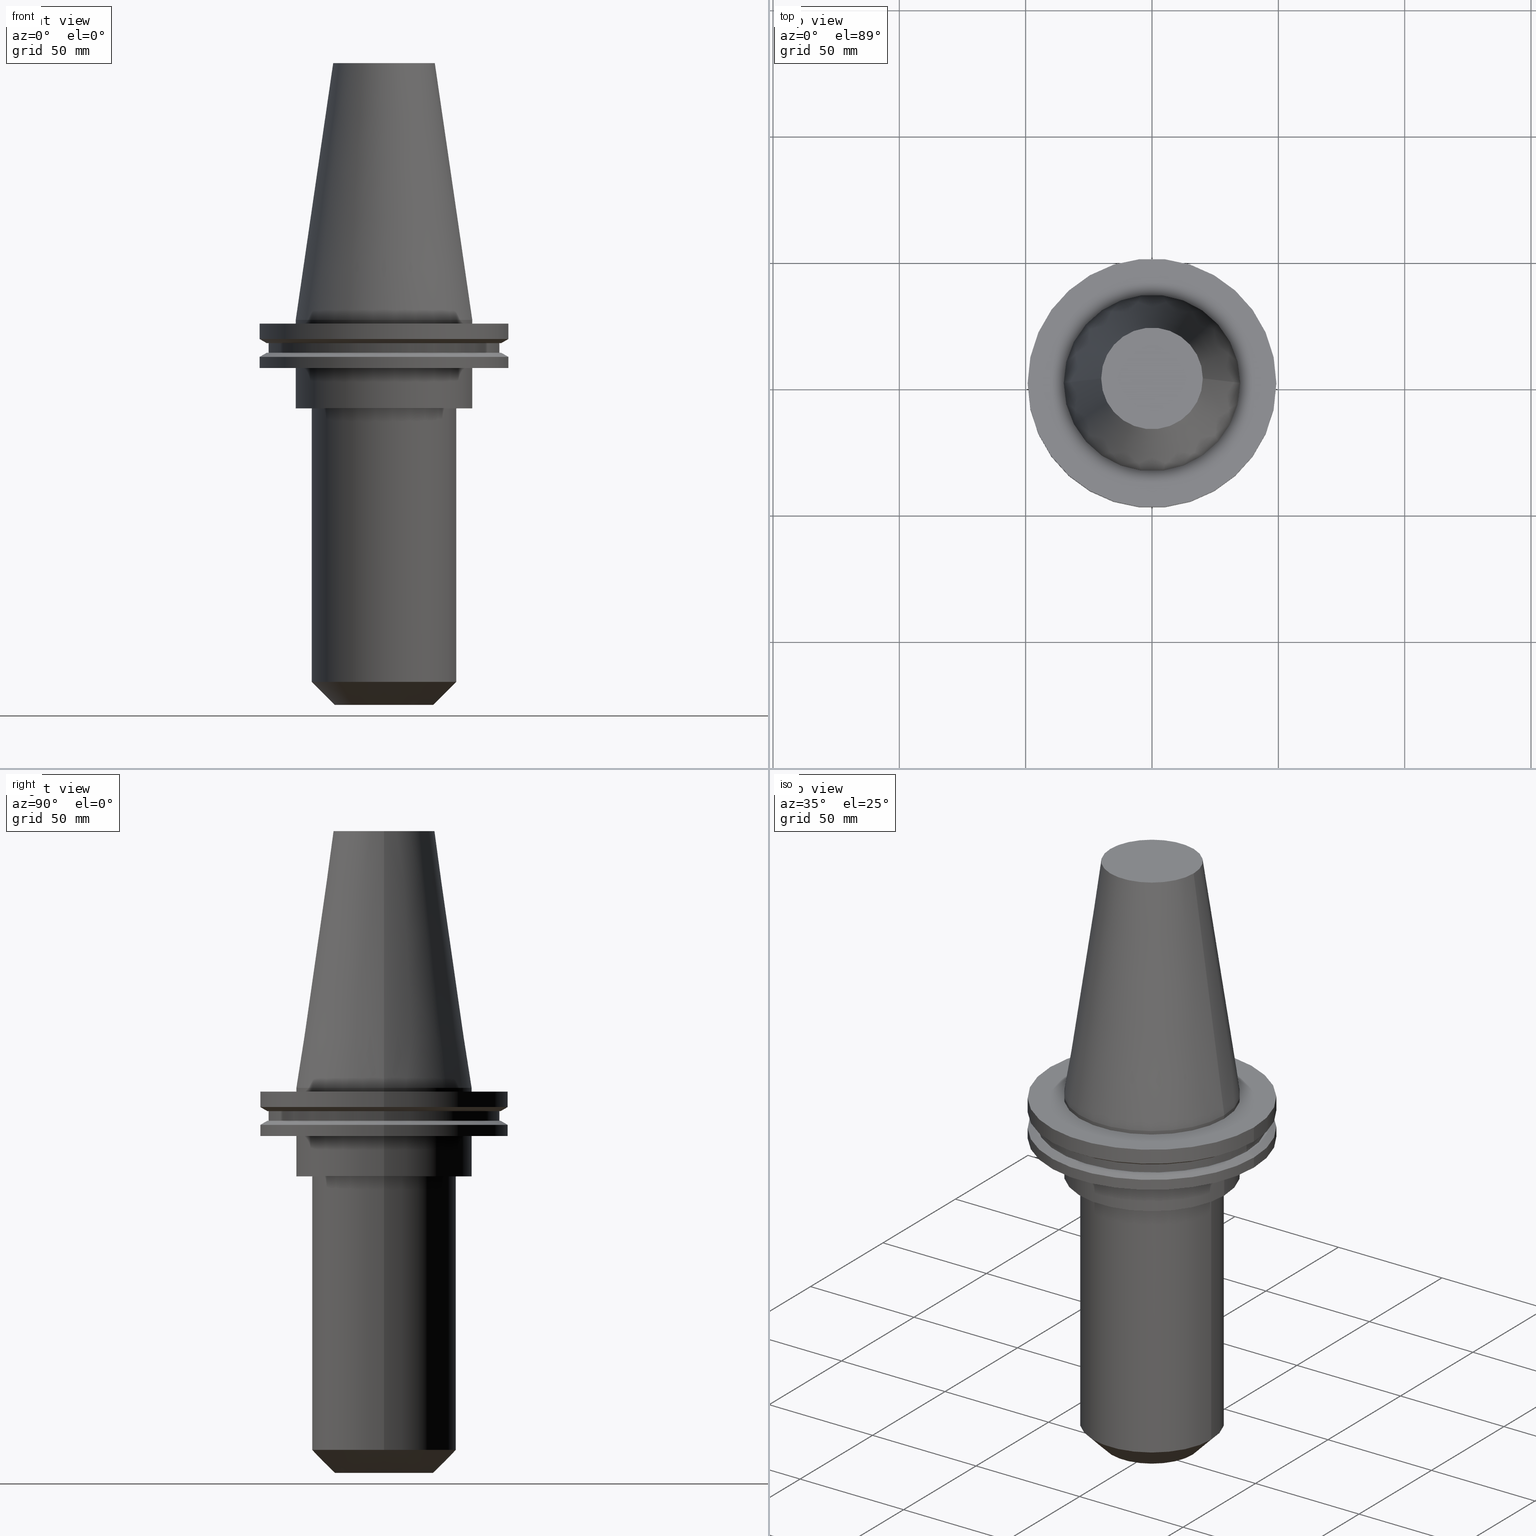
[diagram: canonical four-view strip — front | top / right | iso, engineering-drawing reading convention]
A machine part, canonical four-view strip (front | top / right | iso — engineering-drawing reading convention). The complete STEP part file that produces these views, byte-faithful:
ISO-10303-21;
HEADER;
FILE_DESCRIPTION (( 'STEP AP203' ),
    '1' );
FILE_NAME ('BCV50-EM1_000-6.stp',
    '2022-03-03T16:45:47',
    ( '' ),
    ( '' ),
    'SwSTEP 2.0',
    'SolidWorks 2021',
    '' );
FILE_SCHEMA (( 'CONFIG_CONTROL_DESIGN' ));
ENDSEC;

DATA;
#1 = EDGE_CURVE ( 'NONE', #834, #546, #596, .T. ) ;
#2 = CARTESIAN_POINT ( 'NONE',  ( 19.49999999999998579, 0.000000000000000000, -152.4000000000000057 ) ) ;
#3 = LINE ( 'NONE', #720, #48 ) ;
#4 = CARTESIAN_POINT ( 'NONE',  ( 0.000000000000000000, 0.000000000000000000, -13.05499999999999794 ) ) ;
#5 = AXIS2_PLACEMENT_3D ( 'NONE', #263, #725, #133 ) ;
#6 = LINE ( 'NONE', #421, #545 ) ;
#7 = ORIENTED_EDGE ( 'NONE', *, *, #789, .T. ) ;
#8 = CARTESIAN_POINT ( 'NONE',  ( 0.000000000000000000, 0.000000000000000000, -13.05499999999999794 ) ) ;
#9 = CARTESIAN_POINT ( 'NONE',  ( -49.21499999999999631, 6.027099222003697826E-15, -1.499999999999987566 ) ) ;
#10 = ORIENTED_EDGE ( 'NONE', *, *, #108, .F. ) ;
#11 = CYLINDRICAL_SURFACE ( 'NONE', #104, 34.92499999999999716 ) ;
#12 = AXIS2_PLACEMENT_3D ( 'NONE', #175, #433, #569 ) ;
#13 = CARTESIAN_POINT ( 'NONE',  ( 0.000000000000000000, 0.000000000000000000, -9.204999999999991189 ) ) ;
#14 = ORIENTED_EDGE ( 'NONE', *, *, #662, .F. ) ;
#15 = CARTESIAN_POINT ( 'NONE',  ( 0.000000000000000000, 49.21499999999999631, -1.499999999999992895 ) ) ;
#16 = DIRECTION ( 'NONE',  ( 1.000000000000000000, 0.000000000000000000, 0.000000000000000000 ) ) ;
#17 = EDGE_CURVE ( 'NONE', #290, #130, #443, .T. ) ;
#18 = AXIS2_PLACEMENT_3D ( 'NONE', #413, #491, #167 ) ;
#19 =( NAMED_UNIT ( * ) SI_UNIT ( $, .STERADIAN. ) SOLID_ANGLE_UNIT ( ) );
#20 = ORIENTED_EDGE ( 'NONE', *, *, #79, .F. ) ;
#21 = DIRECTION ( 'NONE',  ( 1.000000000000000000, 0.000000000000000000, 0.000000000000000000 ) ) ;
#22 = VECTOR ( 'NONE', #404, 999.9999999999998863 ) ;
#23 = ORIENTED_EDGE ( 'NONE', *, *, #201, .T. ) ;
#24 = EDGE_CURVE ( 'NONE', #769, #705, #691, .T. ) ;
#25 = FACE_BOUND ( 'NONE', #214, .T. ) ;
#26 = CYLINDRICAL_SURFACE ( 'NONE', #688, 28.59999999999999432 ) ;
#27 = AXIS2_PLACEMENT_3D ( 'NONE', #224, #682, #164 ) ;
#28 = ORIENTED_EDGE ( 'NONE', *, *, #268, .T. ) ;
#29 = EDGE_CURVE ( 'NONE', #834, #587, #670, .T. ) ;
#30 = DIRECTION ( 'NONE',  ( 1.000000000000000000, 0.000000000000000000, 0.000000000000000000 ) ) ;
#31 = ORIENTED_EDGE ( 'NONE', *, *, #555, .T. ) ;
#32 = APPROVAL_ROLE ( '' ) ;
#33 = ORIENTED_EDGE ( 'NONE', *, *, #108, .T. ) ;
#34 = FACE_OUTER_BOUND ( 'NONE', #239, .T. ) ;
#35 = CIRCLE ( 'NONE', #508, 49.21500000000000341 ) ;
#36 = APPROVAL_DATE_TIME ( #641, #675 ) ;
#37 = VERTEX_POINT ( 'NONE', #195 ) ;
#38 = FACE_OUTER_BOUND ( 'NONE', #134, .T. ) ;
#39 = EDGE_CURVE ( 'NONE', #771, #633, #65, .T. ) ;
#40 = APPROVAL_STATUS ( 'not_yet_approved' ) ;
#41 = ORIENTED_EDGE ( 'NONE', *, *, #394, .F. ) ;
#42 = AXIS2_PLACEMENT_3D ( 'NONE', #69, #790, #206 ) ;
#43 = LINE ( 'NONE', #251, #570 ) ;
#44 = VERTEX_POINT ( 'NONE', #594 ) ;
#45 = ADVANCED_FACE ( 'NONE', ( #452, #849 ), #387, .F. ) ;
#46 = VERTEX_POINT ( 'NONE', #124 ) ;
#47 = FACE_OUTER_BOUND ( 'NONE', #192, .T. ) ;
#48 = VECTOR ( 'NONE', #781, 1000.000000000000000 ) ;
#49 = VERTEX_POINT ( 'NONE', #585 ) ;
#50 = AXIS2_PLACEMENT_3D ( 'NONE', #194, #604, #319 ) ;
#51 = ORIENTED_EDGE ( 'NONE', *, *, #640, .T. ) ;
#52 = CARTESIAN_POINT ( 'NONE',  ( 0.000000000000000000, 0.000000000000000000, -152.4000000000000057 ) ) ;
#53 = FACE_BOUND ( 'NONE', #519, .T. ) ;
#54 = DIRECTION ( 'NONE',  ( 1.000000000000000000, 0.000000000000000000, 0.000000000000000000 ) ) ;
#55 = ORIENTED_EDGE ( 'NONE', *, *, #495, .T. ) ;
#56 = DIRECTION ( 'NONE',  ( -0.000000000000000000, -0.000000000000000000, 1.000000000000000000 ) ) ;
#57 = EDGE_CURVE ( 'NONE', #754, #587, #468, .T. ) ;
#58 = CARTESIAN_POINT ( 'NONE',  ( 34.92499999999999005, 0.000000000000000000, 101.5999999999999943 ) ) ;
#59 = DIRECTION ( 'NONE',  ( -0.000000000000000000, -0.000000000000000000, 1.000000000000000000 ) ) ;
#60 = CARTESIAN_POINT ( 'NONE',  ( -49.21499999999999631, 6.027099222003697826E-15, 101.5999999999999943 ) ) ;
#61 = DIRECTION ( 'NONE',  ( 1.000000000000000000, 0.000000000000000000, 0.000000000000000000 ) ) ;
#62 = CIRCLE ( 'NONE', #18, 34.92499999999999716 ) ;
#63 = ORIENTED_EDGE ( 'NONE', *, *, #773, .F. ) ;
#64 = CARTESIAN_POINT ( 'NONE',  ( 0.000000000000000000, 0.000000000000000000, 0.000000000000000000 ) ) ;
#65 = CIRCLE ( 'NONE', #734, 45.64500000000000313 ) ;
#66 = DIRECTION ( 'NONE',  ( -0.000000000000000000, -0.000000000000000000, 1.000000000000000000 ) ) ;
#67 = DIRECTION ( 'NONE',  ( 1.000000000000000000, 0.000000000000000000, 0.000000000000000000 ) ) ;
#68 = EDGE_CURVE ( 'NONE', #44, #785, #359, .T. ) ;
#69 = CARTESIAN_POINT ( 'NONE',  ( 0.000000000000000000, 0.000000000000000000, -35.04999999999999716 ) ) ;
#70 = CARTESIAN_POINT ( 'NONE',  ( 0.000000000000000000, 0.000000000000000000, 0.000000000000000000 ) ) ;
#71 = CONICAL_SURFACE ( 'NONE', #87, 19.49999999999998579, 0.7853981633974495002 ) ;
#72 = CARTESIAN_POINT ( 'NONE',  ( 0.000000000000000000, 0.000000000000000000, -13.05499999999999794 ) ) ;
#73 = DIRECTION ( 'NONE',  ( 1.000000000000000000, 0.000000000000000000, 0.000000000000000000 ) ) ;
#74 = DIRECTION ( 'NONE',  ( -0.000000000000000000, -0.000000000000000000, 1.000000000000000000 ) ) ;
#75 = CARTESIAN_POINT ( 'NONE',  ( 0.000000000000000000, 0.000000000000000000, 0.000000000000000000 ) ) ;
#76 = VECTOR ( 'NONE', #166, 1000.000000000000000 ) ;
#77 = AXIS2_PLACEMENT_3D ( 'NONE', #240, #710, #506 ) ;
#78 = ORIENTED_EDGE ( 'NONE', *, *, #667, .T. ) ;
#79 = EDGE_CURVE ( 'NONE', #130, #290, #354, .T. ) ;
#80 = FACE_OUTER_BOUND ( 'NONE', #475, .T. ) ;
#81 = DIRECTION ( 'NONE',  ( 0.7071067811865483499, 0.000000000000000000, 0.7071067811865466846 ) ) ;
#82 = CARTESIAN_POINT ( 'NONE',  ( 0.000000000000000000, 0.000000000000000000, -19.04999999999999716 ) ) ;
#83 = VERTEX_POINT ( 'NONE', #139 ) ;
#84 = DIRECTION ( 'NONE',  ( -0.000000000000000000, -0.000000000000000000, 1.000000000000000000 ) ) ;
#85 = EDGE_CURVE ( 'NONE', #633, #771, #397, .T. ) ;
#86 = CARTESIAN_POINT ( 'NONE',  ( 0.000000000000000000, 0.000000000000000000, -35.04999999999999716 ) ) ;
#87 = AXIS2_PLACEMENT_3D ( 'NONE', #189, #588, #198 ) ;
#88 = DIRECTION ( 'NONE',  ( -0.000000000000000000, -0.000000000000000000, 1.000000000000000000 ) ) ;
#89 = ORIENTED_EDGE ( 'NONE', *, *, #368, .F. ) ;
#90 = CARTESIAN_POINT ( 'NONE',  ( 0.000000000000000000, 0.000000000000000000, 0.000000000000000000 ) ) ;
#91 = EDGE_CURVE ( 'NONE', #49, #636, #287, .T. ) ;
#92 = AXIS2_PLACEMENT_3D ( 'NONE', #333, #600, #482 ) ;
#93 = CARTESIAN_POINT ( 'NONE',  ( 0.000000000000000000, 0.000000000000000000, -152.4000000000000057 ) ) ;
#94 = CARTESIAN_POINT ( 'NONE',  ( -46.43919780457007818, 5.687161494633754392E-15, -9.204999999999991189 ) ) ;
#95 = EDGE_CURVE ( 'NONE', #445, #312, #62, .T. ) ;
#96 = PERSON_AND_ORGANIZATION ( #294, #364 ) ;
#97 = EDGE_LOOP ( 'NONE', ( #619, #165, #317, #684 ) ) ;
#98 = DIRECTION ( 'NONE',  ( -0.000000000000000000, -0.000000000000000000, 1.000000000000000000 ) ) ;
#99 = ORIENTED_EDGE ( 'NONE', *, *, #846, .F. ) ;
#100 = LOCAL_TIME ( 10, 45, 47.00000000000000000, #301 ) ;
#101 = PERSON_AND_ORGANIZATION_ROLE ( 'design_supplier' ) ;
#102 = ORIENTED_EDGE ( 'NONE', *, *, #622, .T. ) ;
#103 = LINE ( 'NONE', #370, #816 ) ;
#104 = AXIS2_PLACEMENT_3D ( 'NONE', #681, #84, #282 ) ;
#105 = DATE_AND_TIME ( #563, #283 ) ;
#106 = ORIENTED_EDGE ( 'NONE', *, *, #17, .F. ) ;
#107 = CARTESIAN_POINT ( 'NONE',  ( 0.000000000000000000, 0.000000000000000000, 0.000000000000000000 ) ) ;
#108 = EDGE_CURVE ( 'NONE', #625, #818, #507, .T. ) ;
#109 = CIRCLE ( 'NONE', #564, 34.92499999999999716 ) ;
#110 = COORDINATED_UNIVERSAL_TIME_OFFSET ( 6, 0, .BEHIND. ) ;
#111 = ORIENTED_EDGE ( 'NONE', *, *, #29, .F. ) ;
#112 = DIRECTION ( 'NONE',  ( 0.000000000000000000, -0.000000000000000000, 1.000000000000000000 ) ) ;
#113 = EDGE_CURVE ( 'NONE', #754, #250, #137, .T. ) ;
#114 = ORIENTED_EDGE ( 'NONE', *, *, #846, .T. ) ;
#115 = EDGE_LOOP ( 'NONE', ( #830, #524, #574, #14 ) ) ;
#116 = AXIS2_PLACEMENT_3D ( 'NONE', #128, #335, #836 ) ;
#117 = CARTESIAN_POINT ( 'NONE',  ( 0.000000000000000000, 0.000000000000000000, -152.4000000000000057 ) ) ;
#118 = ORIENTED_EDGE ( 'NONE', *, *, #424, .F. ) ;
#119 = ADVANCED_FACE ( 'NONE', ( #627 ), #26, .T. ) ;
#120 = ORIENTED_EDGE ( 'NONE', *, *, #355, .T. ) ;
#121 = DIRECTION ( 'NONE',  ( -0.000000000000000000, -0.000000000000000000, 1.000000000000000000 ) ) ;
#122 = CARTESIAN_POINT ( 'NONE',  ( -28.59999999999999432, 3.502489845561429418E-15, -35.04999999999999716 ) ) ;
#123 = AXIS2_PLACEMENT_3D ( 'NONE', #267, #530, #791 ) ;
#124 = CARTESIAN_POINT ( 'NONE',  ( -12.69999999999999574, 1.555301434917138038E-15, -35.04999999999999716 ) ) ;
#125 = ORIENTED_EDGE ( 'NONE', *, *, #85, .T. ) ;
#126 = EDGE_CURVE ( 'NONE', #818, #805, #544, .T. ) ;
#127 = VECTOR ( 'NONE', #326, 1000.000000000000000 ) ;
#128 = CARTESIAN_POINT ( 'NONE',  ( 0.000000000000000000, 0.000000000000000000, -19.04999999999999716 ) ) ;
#129 = CARTESIAN_POINT ( 'NONE',  ( 0.000000000000000000, 0.000000000000000000, -14.65761014474876944 ) ) ;
#130 = VERTEX_POINT ( 'NONE', #156 ) ;
#131 = FACE_OUTER_BOUND ( 'NONE', #713, .T. ) ;
#132 = VECTOR ( 'NONE', #339, 1000.000000000000000 ) ;
#133 = DIRECTION ( 'NONE',  ( 1.000000000000000000, 0.000000000000000000, 0.000000000000000000 ) ) ;
#134 = EDGE_LOOP ( 'NONE', ( #187, #726, #348, #788 ) ) ;
#135 = DIRECTION ( 'NONE',  ( -0.000000000000000000, -0.000000000000000000, 1.000000000000000000 ) ) ;
#136 = DIRECTION ( 'NONE',  ( -0.000000000000000000, -0.000000000000000000, 1.000000000000000000 ) ) ;
#137 = CIRCLE ( 'NONE', #249, 34.92499999999999005 ) ;
#138 = EDGE_CURVE ( 'NONE', #46, #677, #423, .T. ) ;
#139 = CARTESIAN_POINT ( 'NONE',  ( -28.60000000000000853, 3.502489845561430996E-15, -143.3000000000000114 ) ) ;
#140 = DIRECTION ( 'NONE',  ( -0.000000000000000000, -0.000000000000000000, 1.000000000000000000 ) ) ;
#141 = LINE ( 'NONE', #599, #173 ) ;
#142 = ORIENTED_EDGE ( 'NONE', *, *, #789, .F. ) ;
#143 = DIRECTION ( 'NONE',  ( 1.000000000000000000, 0.000000000000000000, 0.000000000000000000 ) ) ;
#144 = EDGE_LOOP ( 'NONE', ( #125, #845, #20, #236 ) ) ;
#145 = DIRECTION ( 'NONE',  ( 1.000000000000000000, 0.000000000000000000, 0.000000000000000000 ) ) ;
#146 = DIRECTION ( 'NONE',  ( -0.000000000000000000, -0.000000000000000000, 1.000000000000000000 ) ) ;
#147 = MECHANICAL_CONTEXT ( 'NONE', #706, 'mechanical' ) ;
#148 = VECTOR ( 'NONE', #689, 999.9999999999998863 ) ;
#149 = EDGE_LOOP ( 'NONE', ( #565, #645, #480, #709 ) ) ;
#150 = DIRECTION ( 'NONE',  ( -1.000000000000000000, 0.000000000000000000, -0.000000000000000000 ) ) ;
#151 = ADVANCED_FACE ( 'NONE', ( #420, #298 ), #759, .F. ) ;
#152 = CARTESIAN_POINT ( 'NONE',  ( 0.000000000000000000, 0.000000000000000000, 101.5999999999999943 ) ) ;
#153 = VERTEX_POINT ( 'NONE', #122 ) ;
#154 = CARTESIAN_POINT ( 'NONE',  ( 49.21499999999998920, 6.027099222003697037E-15, -14.65761014474876944 ) ) ;
#155 = VECTOR ( 'NONE', #461, 1000.000000000000000 ) ;
#156 = CARTESIAN_POINT ( 'NONE',  ( 45.64500000000000313, 0.000000000000000000, -9.204999999999991189 ) ) ;
#157 = APPLICATION_PROTOCOL_DEFINITION ( 'international standard', 'config_control_design', 1994, #162 ) ;
#158 = ORIENTED_EDGE ( 'NONE', *, *, #355, .F. ) ;
#159 = DIRECTION ( 'NONE',  ( -0.000000000000000000, -0.000000000000000000, 1.000000000000000000 ) ) ;
#160 = EDGE_CURVE ( 'NONE', #636, #49, #109, .T. ) ;
#161 = DIRECTION ( 'NONE',  ( -0.000000000000000000, -0.000000000000000000, 1.000000000000000000 ) ) ;
#162 = APPLICATION_CONTEXT ( 'configuration controlled 3d designs of mechanical parts and assemblies' ) ;
#163 = CONICAL_SURFACE ( 'NONE', #644, 46.43919780457007818, 1.047197551196575205 ) ;
#164 = DIRECTION ( 'NONE',  ( 1.000000000000000000, 0.000000000000000000, 0.000000000000000000 ) ) ;
#165 = ORIENTED_EDGE ( 'NONE', *, *, #773, .T. ) ;
#166 = DIRECTION ( 'NONE',  ( -0.8660254037844273833, 1.060575238724893110E-16, 0.5000000000000195399 ) ) ;
#167 = DIRECTION ( 'NONE',  ( 1.000000000000000000, 0.000000000000000000, 0.000000000000000000 ) ) ;
#168 = ADVANCED_FACE ( 'NONE', ( #456 ), #332, .F. ) ;
#169 = DATE_TIME_ROLE ( 'creation_date' ) ;
#170 = EDGE_LOOP ( 'NONE', ( #655, #757 ) ) ;
#171 = VECTOR ( 'NONE', #199, 1000.000000000000114 ) ;
#172 = DIRECTION ( 'NONE',  ( 1.000000000000000000, 0.000000000000000000, 0.000000000000000000 ) ) ;
#173 = VECTOR ( 'NONE', #669, 1000.000000000000000 ) ;
#174 = VERTEX_POINT ( 'NONE', #274 ) ;
#175 = CARTESIAN_POINT ( 'NONE',  ( 0.000000000000000000, 49.21499999999998920, -19.04999999999999716 ) ) ;
#176 = AXIS2_PLACEMENT_3D ( 'NONE', #273, #347, #687 ) ;
#177 = ORIENTED_EDGE ( 'NONE', *, *, #310, .F. ) ;
#178 = ADVANCED_FACE ( 'NONE', ( #538 ), #802, .T. ) ;
#179 = LINE ( 'NONE', #698, #853 ) ;
#180 = EDGE_LOOP ( 'NONE', ( #373, #120, #376, #504 ) ) ;
#181 = ADVANCED_FACE ( 'NONE', ( #801 ), #470, .T. ) ;
#182 = DIRECTION ( 'NONE',  ( 0.8660254037844273833, 0.000000000000000000, 0.5000000000000195399 ) ) ;
#183 = PERSON_AND_ORGANIZATION ( #294, #364 ) ;
#184 = VERTEX_POINT ( 'NONE', #733 ) ;
#185 = DIRECTION ( 'NONE',  ( -0.000000000000000000, -0.000000000000000000, 1.000000000000000000 ) ) ;
#186 = ADVANCED_FACE ( 'NONE', ( #653, #53 ), #204, .F. ) ;
#187 = ORIENTED_EDGE ( 'NONE', *, *, #216, .T. ) ;
#188 = ORIENTED_EDGE ( 'NONE', *, *, #91, .F. ) ;
#189 = CARTESIAN_POINT ( 'NONE',  ( 0.000000000000000000, 0.000000000000000000, -152.4000000000000057 ) ) ;
#190 = DIRECTION ( 'NONE',  ( 1.000000000000000000, 0.000000000000000000, 0.000000000000000000 ) ) ;
#191 = EDGE_CURVE ( 'NONE', #805, #83, #427, .T. ) ;
#192 = EDGE_LOOP ( 'NONE', ( #63, #663, #218, #314 ) ) ;
#193 = LINE ( 'NONE', #664, #448 ) ;
#194 = CARTESIAN_POINT ( 'NONE',  ( 0.000000000000000000, 0.000000000000000000, 101.5999999999999943 ) ) ;
#195 = CARTESIAN_POINT ( 'NONE',  ( -49.21499999999998920, 6.027099222003697037E-15, -14.65761014474876944 ) ) ;
#196 = CONICAL_SURFACE ( 'NONE', #344, 19.49999999999998579, 0.7853981633974495002 ) ;
#197 = ORIENTED_EDGE ( 'NONE', *, *, #68, .F. ) ;
#198 = DIRECTION ( 'NONE',  ( 1.000000000000000000, 0.000000000000000000, 0.000000000000000000 ) ) ;
#199 = DIRECTION ( 'NONE',  ( -0.8660254037844169472, 0.000000000000000000, -0.5000000000000375255 ) ) ;
#200 = EDGE_LOOP ( 'NONE', ( #820, #778 ) ) ;
#201 = EDGE_CURVE ( 'NONE', #250, #241, #787, .T. ) ;
#202 = FACE_OUTER_BOUND ( 'NONE', #337, .T. ) ;
#203 = AXIS2_PLACEMENT_3D ( 'NONE', #82, #415, #541 ) ;
#204 = PLANE ( 'NONE',  #235 ) ;
#205 = ORIENTED_EDGE ( 'NONE', *, *, #216, .F. ) ;
#206 = DIRECTION ( 'NONE',  ( 1.000000000000000000, 0.000000000000000000, 0.000000000000000000 ) ) ;
#207 = EDGE_CURVE ( 'NONE', #649, #174, #141, .T. ) ;
#208 = DIRECTION ( 'NONE',  ( -0.000000000000000000, -0.000000000000000000, 1.000000000000000000 ) ) ;
#209 = VECTOR ( 'NONE', #81, 1000.000000000000000 ) ;
#210 = DIRECTION ( 'NONE',  ( 1.000000000000000000, 0.000000000000000000, 0.000000000000000000 ) ) ;
#211 = DIRECTION ( 'NONE',  ( -1.000000000000000000, 0.000000000000000000, -0.000000000000000000 ) ) ;
#212 = EDGE_CURVE ( 'NONE', #546, #834, #652, .T. ) ;
#213 = LINE ( 'NONE', #537, #132 ) ;
#214 = EDGE_LOOP ( 'NONE', ( #638, #396 ) ) ;
#215 = CARTESIAN_POINT ( 'NONE',  ( -34.92499999999999716, 4.277078946022130887E-15, -19.04999999999999716 ) ) ;
#216 = EDGE_CURVE ( 'NONE', #785, #44, #35, .T. ) ;
#217 = CARTESIAN_POINT ( 'NONE',  ( 0.000000000000000000, 0.000000000000000000, 0.000000000000000000 ) ) ;
#218 = ORIENTED_EDGE ( 'NONE', *, *, #572, .T. ) ;
#219 = LINE ( 'NONE', #94, #76 ) ;
#220 = CARTESIAN_POINT ( 'NONE',  ( 0.000000000000000000, 0.000000000000000000, -1.499999999999987566 ) ) ;
#221 = PERSON_AND_ORGANIZATION_ROLE ( 'design_owner' ) ;
#222 = EDGE_CURVE ( 'NONE', #705, #37, #403, .T. ) ;
#223 = DIRECTION ( 'NONE',  ( -0.000000000000000000, -0.000000000000000000, 1.000000000000000000 ) ) ;
#224 = CARTESIAN_POINT ( 'NONE',  ( 0.000000000000000000, 0.000000000000000000, 101.5999999999999943 ) ) ;
#225 = ORIENTED_EDGE ( 'NONE', *, *, #212, .T. ) ;
#226 = PRODUCT_RELATED_PRODUCT_CATEGORY ( 'detail', '', ( #741 ) ) ;
#227 = CYLINDRICAL_SURFACE ( 'NONE', #779, 45.64500000000000313 ) ;
#228 = AXIS2_PLACEMENT_3D ( 'NONE', #484, #742, #804 ) ;
#229 = ORIENTED_EDGE ( 'NONE', *, *, #24, .F. ) ;
#230 = DIRECTION ( 'NONE',  ( 1.000000000000000000, 0.000000000000000000, 0.000000000000000000 ) ) ;
#231 = PERSON_AND_ORGANIZATION ( #294, #364 ) ;
#232 = VERTEX_POINT ( 'NONE', #390 ) ;
#233 = CIRCLE ( 'NONE', #343, 49.21499999999999631 ) ;
#234 = FACE_OUTER_BOUND ( 'NONE', #371, .T. ) ;
#235 = AXIS2_PLACEMENT_3D ( 'NONE', #535, #657, #593 ) ;
#236 = ORIENTED_EDGE ( 'NONE', *, *, #622, .F. ) ;
#237 = EDGE_CURVE ( 'NONE', #49, #312, #3, .T. ) ;
#238 = APPROVAL_STATUS ( 'not_yet_approved' ) ;
#239 = EDGE_LOOP ( 'NONE', ( #416, #188 ) ) ;
#240 = CARTESIAN_POINT ( 'NONE',  ( 0.000000000000000000, 0.000000000000000000, -14.65761014474876944 ) ) ;
#241 = VERTEX_POINT ( 'NONE', #590 ) ;
#242 = ADVANCED_FACE ( 'NONE', ( #467 ), #844, .F. ) ;
#243 = CIRCLE ( 'NONE', #309, 49.21499999999998920 ) ;
#244 = PERSON_AND_ORGANIZATION_ROLE ( 'classification_officer' ) ;
#245 = CC_DESIGN_APPROVAL ( #419, ( #855 ) ) ;
#246 = EDGE_LOOP ( 'NONE', ( #89, #118, #814, #55 ) ) ;
#247 = CYLINDRICAL_SURFACE ( 'NONE', #637, 28.59999999999999432 ) ;
#248 = ORIENTED_EDGE ( 'NONE', *, *, #518, .T. ) ;
#249 = AXIS2_PLACEMENT_3D ( 'NONE', #220, #680, #812 ) ;
#250 = VERTEX_POINT ( 'NONE', #848 ) ;
#251 = CARTESIAN_POINT ( 'NONE',  ( -45.64500000000000313, 5.589900314708094957E-15, 101.5999999999999943 ) ) ;
#252 = ORIENTED_EDGE ( 'NONE', *, *, #268, .F. ) ;
#253 = DIRECTION ( 'NONE',  ( -0.000000000000000000, -0.000000000000000000, 1.000000000000000000 ) ) ;
#254 = EDGE_CURVE ( 'NONE', #677, #46, #496, .T. ) ;
#255 = ORIENTED_EDGE ( 'NONE', *, *, #288, .T. ) ;
#256 =( GEOMETRIC_REPRESENTATION_CONTEXT ( 3 ) GLOBAL_UNCERTAINTY_ASSIGNED_CONTEXT ( ( #429 ) ) GLOBAL_UNIT_ASSIGNED_CONTEXT ( ( #284, #800, #19 ) ) REPRESENTATION_CONTEXT ( 'NONE', 'WORKASPACE' ) );
#257 = CARTESIAN_POINT ( 'NONE',  ( 0.000000000000000000, 0.000000000000000000, -35.04999999999999716 ) ) ;
#258 = DIRECTION ( 'NONE',  ( 1.000000000000000000, 0.000000000000000000, 0.000000000000000000 ) ) ;
#259 = DIRECTION ( 'NONE',  ( 1.000000000000000000, 0.000000000000000000, 0.000000000000000000 ) ) ;
#260 = AXIS2_PLACEMENT_3D ( 'NONE', #8, #815, #811 ) ;
#261 = ORIENTED_EDGE ( 'NONE', *, *, #39, .F. ) ;
#262 = LINE ( 'NONE', #525, #807 ) ;
#263 = CARTESIAN_POINT ( 'NONE',  ( 0.000000000000000000, 34.92499999999999716, -35.04999999999999716 ) ) ;
#264 = ORIENTED_EDGE ( 'NONE', *, *, #394, .T. ) ;
#265 = EDGE_CURVE ( 'NONE', #184, #672, #608, .T. ) ;
#266 = DIRECTION ( 'NONE',  ( 1.000000000000000000, 0.000000000000000000, 0.000000000000000000 ) ) ;
#267 = CARTESIAN_POINT ( 'NONE',  ( 0.000000000000000000, 0.000000000000000000, -35.04999999999999716 ) ) ;
#268 = EDGE_CURVE ( 'NONE', #810, #722, #233, .T. ) ;
#269 = CARTESIAN_POINT ( 'NONE',  ( -19.49999999999998579, 2.945275551949383784E-15, -152.4000000000000057 ) ) ;
#270 = CIRCLE ( 'NONE', #176, 49.21499999999998920 ) ;
#271 = CARTESIAN_POINT ( 'NONE',  ( -49.21499999999998920, 0.000000000000000000, -14.65761014474876944 ) ) ;
#272 = ORIENTED_EDGE ( 'NONE', *, *, #1, .F. ) ;
#273 = CARTESIAN_POINT ( 'NONE',  ( 0.000000000000000000, 0.000000000000000000, -19.04999999999999716 ) ) ;
#274 = CARTESIAN_POINT ( 'NONE',  ( 49.21499999999998920, 0.000000000000000000, -14.65761014474876944 ) ) ;
#275 = DIRECTION ( 'NONE',  ( -0.000000000000000000, -0.000000000000000000, 1.000000000000000000 ) ) ;
#276 = CIRCLE ( 'NONE', #580, 34.92499999999999005 ) ;
#277 = DIRECTION ( 'NONE',  ( 1.000000000000000000, 0.000000000000000000, 0.000000000000000000 ) ) ;
#278 = AXIS2_PLACEMENT_3D ( 'NONE', #4, #59, #782 ) ;
#279 = DIRECTION ( 'NONE',  ( -0.000000000000000000, -0.000000000000000000, 1.000000000000000000 ) ) ;
#280 = ADVANCED_FACE ( 'NONE', ( #543 ), #303, .T. ) ;
#281 = EDGE_LOOP ( 'NONE', ( #352, #114, #493, #501 ) ) ;
#282 = DIRECTION ( 'NONE',  ( 1.000000000000000000, 0.000000000000000000, 0.000000000000000000 ) ) ;
#283 = LOCAL_TIME ( 10, 45, 47.00000000000000000, #695 ) ;
#284 =( LENGTH_UNIT ( ) NAMED_UNIT ( * ) SI_UNIT ( .MILLI., .METRE. ) );
#285 = EDGE_LOOP ( 'NONE', ( #177, #554, #300, #515 ) ) ;
#286 = LINE ( 'NONE', #481, #561 ) ;
#287 = CIRCLE ( 'NONE', #92, 34.92499999999999716 ) ;
#288 = EDGE_CURVE ( 'NONE', #184, #44, #219, .T. ) ;
#289 = CARTESIAN_POINT ( 'NONE',  ( 49.21500000000000341, 0.000000000000000000, -7.602389855251287187 ) ) ;
#290 = VERTEX_POINT ( 'NONE', #410 ) ;
#291 = CYLINDRICAL_SURFACE ( 'NONE', #562, 12.69999999999999574 ) ;
#292 = ORIENTED_EDGE ( 'NONE', *, *, #1, .T. ) ;
#293 = DIRECTION ( 'NONE',  ( -0.7071067811865483499, 8.659560562354942719E-17, 0.7071067811865466846 ) ) ;
#294 = PERSON ( 'UNSPECIFIED', 'UNSPECIFIED', 'UNSPECIFIED', ('UNSPECIFIED'), ('UNSPECIFIED'), ('UNSPECIFIED') ) ;
#295 = ORIENTED_EDGE ( 'NONE', *, *, #767, .F. ) ;
#296 = VECTOR ( 'NONE', #293, 1000.000000000000000 ) ;
#297 = FACE_BOUND ( 'NONE', #824, .T. ) ;
#298 = FACE_OUTER_BOUND ( 'NONE', #170, .T. ) ;
#299 = DESIGN_CONTEXT ( 'detailed design', #162, 'design' ) ;
#300 = ORIENTED_EDGE ( 'NONE', *, *, #813, .T. ) ;
#301 = COORDINATED_UNIVERSAL_TIME_OFFSET ( 6, 0, .BEHIND. ) ;
#302 = EDGE_LOOP ( 'NONE', ( #292, #225 ) ) ;
#303 = CONICAL_SURFACE ( 'NONE', #784, 34.92499999999999005, 0.1448138465474119452 ) ;
#304 = FACE_BOUND ( 'NONE', #837, .T. ) ;
#305 = CC_DESIGN_PERSON_AND_ORGANIZATION_ASSIGNMENT ( #671, #221, ( #741 ) ) ;
#306 = ORIENTED_EDGE ( 'NONE', *, *, #368, .T. ) ;
#307 = DIRECTION ( 'NONE',  ( 1.000000000000000000, 0.000000000000000000, 0.000000000000000000 ) ) ;
#308 = AXIS2_PLACEMENT_3D ( 'NONE', #93, #88, #603 ) ;
#309 = AXIS2_PLACEMENT_3D ( 'NONE', #668, #135, #851 ) ;
#310 = EDGE_CURVE ( 'NONE', #362, #46, #286, .T. ) ;
#311 = DATE_AND_TIME ( #509, #100 ) ;
#312 = VERTEX_POINT ( 'NONE', #215 ) ;
#313 = DIRECTION ( 'NONE',  ( -0.000000000000000000, -0.000000000000000000, 1.000000000000000000 ) ) ;
#314 = ORIENTED_EDGE ( 'NONE', *, *, #735, .T. ) ;
#315 = CC_DESIGN_DATE_AND_TIME_ASSIGNMENT ( #105, #169, ( #753 ) ) ;
#316 = DIRECTION ( 'NONE',  ( -0.000000000000000000, -0.000000000000000000, 1.000000000000000000 ) ) ;
#317 = ORIENTED_EDGE ( 'NONE', *, *, #702, .T. ) ;
#318 = DIRECTION ( 'NONE',  ( -1.000000000000000000, 0.000000000000000000, 0.000000000000000000 ) ) ;
#319 = DIRECTION ( 'NONE',  ( 1.000000000000000000, 0.000000000000000000, 0.000000000000000000 ) ) ;
#320 = CARTESIAN_POINT ( 'NONE',  ( 0.000000000000000000, 0.000000000000000000, -7.602389855251287187 ) ) ;
#321 = ORIENTED_EDGE ( 'NONE', *, *, #518, .F. ) ;
#322 = AXIS2_PLACEMENT_3D ( 'NONE', #52, #469, #529 ) ;
#323 = FACE_OUTER_BOUND ( 'NONE', #246, .T. ) ;
#324 = DIRECTION ( 'NONE',  ( 0.000000000000000000, 0.000000000000000000, -1.000000000000000000 ) ) ;
#325 = ADVANCED_FACE ( 'NONE', ( #476 ), #227, .T. ) ;
#326 = DIRECTION ( 'NONE',  ( -0.000000000000000000, -0.000000000000000000, 1.000000000000000000 ) ) ;
#327 = DIRECTION ( 'NONE',  ( 1.000000000000000000, 0.000000000000000000, 0.000000000000000000 ) ) ;
#328 = DIRECTION ( 'NONE',  ( -0.000000000000000000, -0.000000000000000000, 1.000000000000000000 ) ) ;
#329 = CARTESIAN_POINT ( 'NONE',  ( 0.000000000000000000, 0.000000000000000000, 101.5999999999999801 ) ) ;
#330 = ADVANCED_FACE ( 'NONE', ( #740 ), #678, .T. ) ;
#331 = CARTESIAN_POINT ( 'NONE',  ( 46.43919780457007818, 0.000000000000000000, -9.204999999999991189 ) ) ;
#332 = CYLINDRICAL_SURFACE ( 'NONE', #610, 12.69999999999999574 ) ;
#333 = CARTESIAN_POINT ( 'NONE',  ( 0.000000000000000000, 0.000000000000000000, -35.04999999999999716 ) ) ;
#334 = ADVANCED_FACE ( 'NONE', ( #25, #80 ), #743, .F. ) ;
#335 = DIRECTION ( 'NONE',  ( -0.000000000000000000, -0.000000000000000000, 1.000000000000000000 ) ) ;
#336 = CARTESIAN_POINT ( 'NONE',  ( 0.000000000000000000, 0.000000000000000000, -7.602389855251287187 ) ) ;
#337 = EDGE_LOOP ( 'NONE', ( #158, #33, #774, #571 ) ) ;
#338 = EDGE_CURVE ( 'NONE', #672, #184, #674, .T. ) ;
#339 = DIRECTION ( 'NONE',  ( -0.000000000000000000, -0.000000000000000000, 1.000000000000000000 ) ) ;
#340 = ORIENTED_EDGE ( 'NONE', *, *, #735, .F. ) ;
#341 = CARTESIAN_POINT ( 'NONE',  ( 34.92499999999999005, 4.277078946022130098E-15, 0.000000000000000000 ) ) ;
#342 = DIRECTION ( 'NONE',  ( 1.000000000000000000, 0.000000000000000000, 0.000000000000000000 ) ) ;
#343 = AXIS2_PLACEMENT_3D ( 'NONE', #806, #279, #808 ) ;
#344 = AXIS2_PLACEMENT_3D ( 'NONE', #502, #825, #693 ) ;
#345 = CYLINDRICAL_SURFACE ( 'NONE', #532, 49.21499999999998920 ) ;
#346 = CARTESIAN_POINT ( 'NONE',  ( -12.70000000000000462, 1.555301434917139024E-15, -152.4000000000000057 ) ) ;
#347 = DIRECTION ( 'NONE',  ( -0.000000000000000000, -0.000000000000000000, 1.000000000000000000 ) ) ;
#348 = ORIENTED_EDGE ( 'NONE', *, *, #597, .F. ) ;
#349 = CARTESIAN_POINT ( 'NONE',  ( 0.000000000000000000, 0.000000000000000000, -9.204999999999991189 ) ) ;
#350 = VECTOR ( 'NONE', #719, 1000.000000000000000 ) ;
#351 = FACE_OUTER_BOUND ( 'NONE', #436, .T. ) ;
#352 = ORIENTED_EDGE ( 'NONE', *, *, #466, .F. ) ;
#353 = LINE ( 'NONE', #618, #296 ) ;
#354 = CIRCLE ( 'NONE', #799, 45.64500000000000313 ) ;
#355 = EDGE_CURVE ( 'NONE', #625, #83, #353, .T. ) ;
#356 = APPROVAL_DATE_TIME ( #311, #738 ) ;
#357 = ORIENTED_EDGE ( 'NONE', *, *, #583, .F. ) ;
#358 = DIRECTION ( 'NONE',  ( -1.000000000000000000, 0.000000000000000000, 0.000000000000000000 ) ) ;
#359 = CIRCLE ( 'NONE', #835, 49.21500000000000341 ) ;
#360 = DIRECTION ( 'NONE',  ( 1.000000000000000000, 0.000000000000000000, 0.000000000000000000 ) ) ;
#361 = APPROVAL_ROLE ( '' ) ;
#362 = VERTEX_POINT ( 'NONE', #346 ) ;
#363 = DIRECTION ( 'NONE',  ( 1.000000000000000000, 0.000000000000000000, 0.000000000000000000 ) ) ;
#364 = ORGANIZATION ( 'UNSPECIFIED', 'UNSPECIFIED', '' ) ;
#365 = CC_DESIGN_SECURITY_CLASSIFICATION ( #855, ( #765 ) ) ;
#366 = DATE_TIME_ROLE ( 'classification_date' ) ;
#367 = ORIENTED_EDGE ( 'NONE', *, *, #138, .F. ) ;
#368 = EDGE_CURVE ( 'NONE', #769, #174, #412, .T. ) ;
#369 = AXIS2_PLACEMENT_3D ( 'NONE', #349, #490, #145 ) ;
#370 = CARTESIAN_POINT ( 'NONE',  ( 28.59999999999999432, 0.000000000000000000, 0.000000000000000000 ) ) ;
#371 = EDGE_LOOP ( 'NONE', ( #739, #99 ) ) ;
#372 = SHAPE_DEFINITION_REPRESENTATION ( #414, #648 ) ;
#373 = ORIENTED_EDGE ( 'NONE', *, *, #796, .T. ) ;
#374 = CARTESIAN_POINT ( 'NONE',  ( 0.000000000000000000, 0.000000000000000000, -143.3000000000000114 ) ) ;
#375 = PERSON_AND_ORGANIZATION ( #294, #364 ) ;
#376 = ORIENTED_EDGE ( 'NONE', *, *, #191, .F. ) ;
#377 = DIRECTION ( 'NONE',  ( 1.000000000000000000, 0.000000000000000000, 0.000000000000000000 ) ) ;
#378 = ORIENTED_EDGE ( 'NONE', *, *, #254, .F. ) ;
#379 = ADVANCED_FACE ( 'NONE', ( #407 ), #11, .T. ) ;
#380 = VECTOR ( 'NONE', #56, 1000.000000000000000 ) ;
#381 = VERTEX_POINT ( 'NONE', #748 ) ;
#382 = CYLINDRICAL_SURFACE ( 'NONE', #745, 34.92499999999999005 ) ;
#383 = ORIENTED_EDGE ( 'NONE', *, *, #555, .F. ) ;
#384 = CARTESIAN_POINT ( 'NONE',  ( 0.000000000000000000, 0.000000000000000000, -1.499999999999987566 ) ) ;
#385 = VECTOR ( 'NONE', #707, 1000.000000000000000 ) ;
#386 = DIRECTION ( 'NONE',  ( -0.000000000000000000, -0.000000000000000000, 1.000000000000000000 ) ) ;
#387 = PLANE ( 'NONE',  #499 ) ;
#388 = ORIENTED_EDGE ( 'NONE', *, *, #662, .T. ) ;
#389 = CARTESIAN_POINT ( 'NONE',  ( 46.43919780457007818, 5.857130358318725715E-15, -13.05499999999999794 ) ) ;
#390 = CARTESIAN_POINT ( 'NONE',  ( 12.70000000000000462, 0.000000000000000000, -152.4000000000000057 ) ) ;
#391 = ORIENTED_EDGE ( 'NONE', *, *, #68, .T. ) ;
#392 = AXIS2_PLACEMENT_3D ( 'NONE', #384, #253, #327 ) ;
#393 = CARTESIAN_POINT ( 'NONE',  ( 0.000000000000000000, 0.000000000000000000, -14.65761014474876944 ) ) ;
#394 = EDGE_CURVE ( 'NONE', #546, #241, #550, .T. ) ;
#395 = DIRECTION ( 'NONE',  ( 0.000000000000000000, 0.000000000000000000, -1.000000000000000000 ) ) ;
#396 = ORIENTED_EDGE ( 'NONE', *, *, #113, .F. ) ;
#397 = CIRCLE ( 'NONE', #833, 45.64500000000000313 ) ;
#398 = DIRECTION ( 'NONE',  ( 0.000000000000000000, 0.000000000000000000, -1.000000000000000000 ) ) ;
#399 = DIRECTION ( 'NONE',  ( -0.000000000000000000, -0.000000000000000000, 1.000000000000000000 ) ) ;
#400 = CARTESIAN_POINT ( 'NONE',  ( 0.000000000000000000, 0.000000000000000000, -13.05499999999999794 ) ) ;
#401 = CLOSED_SHELL ( 'NONE', ( #442, #471, #119, #729, #523, #809, #181, #178, #330, #379, #280, #578, #613, #405, #533, #548, #831, #650, #151, #325, #45, #803, #783, #334, #447, #459, #723, #186, #168, #242 ) ) ;
#402 = DIRECTION ( 'NONE',  ( 0.000000000000000000, 0.000000000000000000, -1.000000000000000000 ) ) ;
#403 = LINE ( 'NONE', #271, #171 ) ;
#404 = DIRECTION ( 'NONE',  ( -0.1443082272672999988, 0.000000000000000000, -0.9895327864921755756 ) ) ;
#405 = ADVANCED_FACE ( 'NONE', ( #620 ), #557, .F. ) ;
#406 = ORIENTED_EDGE ( 'NONE', *, *, #212, .F. ) ;
#407 = FACE_OUTER_BOUND ( 'NONE', #115, .T. ) ;
#408 = VECTOR ( 'NONE', #612, 1000.000000000000114 ) ;
#409 = DIRECTION ( 'NONE',  ( -0.000000000000000000, -0.000000000000000000, 1.000000000000000000 ) ) ;
#410 = CARTESIAN_POINT ( 'NONE',  ( -45.64500000000000313, 5.589900314708094957E-15, -9.204999999999991189 ) ) ;
#411 = CARTESIAN_POINT ( 'NONE',  ( 28.60000000000000497, 0.000000000000000000, -143.3000000000000114 ) ) ;
#412 = LINE ( 'NONE', #154, #408 ) ;
#413 = CARTESIAN_POINT ( 'NONE',  ( 0.000000000000000000, 0.000000000000000000, -19.04999999999999716 ) ) ;
#414 = PRODUCT_DEFINITION_SHAPE ( 'NONE', 'NONE',  #753 ) ;
#415 = DIRECTION ( 'NONE',  ( -0.000000000000000000, -0.000000000000000000, 1.000000000000000000 ) ) ;
#416 = ORIENTED_EDGE ( 'NONE', *, *, #160, .F. ) ;
#417 = CIRCLE ( 'NONE', #697, 28.59999999999999432 ) ;
#418 = DIRECTION ( 'NONE',  ( 1.000000000000000000, 0.000000000000000000, 0.000000000000000000 ) ) ;
#419 = APPROVAL ( #238, 'UNSPECIFIED' ) ;
#420 = FACE_BOUND ( 'NONE', #605, .T. ) ;
#421 = CARTESIAN_POINT ( 'NONE',  ( 12.69999999999999574, 0.000000000000000000, 0.000000000000000000 ) ) ;
#422 = DIRECTION ( 'NONE',  ( 1.000000000000000000, 0.000000000000000000, 0.000000000000000000 ) ) ;
#423 = CIRCLE ( 'NONE', #438, 12.69999999999999574 ) ;
#424 = EDGE_CURVE ( 'NONE', #705, #769, #699, .T. ) ;
#425 = CALENDAR_DATE ( 2022, 3, 3 ) ;
#426 = ORIENTED_EDGE ( 'NONE', *, *, #29, .T. ) ;
#427 = CIRCLE ( 'NONE', #540, 28.60000000000000497 ) ;
#428 = CARTESIAN_POINT ( 'NONE',  ( 0.000000000000000000, 0.000000000000000000, 101.5999999999999943 ) ) ;
#429 = UNCERTAINTY_MEASURE_WITH_UNIT (LENGTH_MEASURE( 1.000000000000000082E-05 ), #284, 'distance_accuracy_value', 'NONE');
#430 = EDGE_CURVE ( 'NONE', #241, #587, #589, .T. ) ;
#431 = PERSON_AND_ORGANIZATION ( #294, #364 ) ;
#432 = ORIENTED_EDGE ( 'NONE', *, *, #95, .T. ) ;
#433 = DIRECTION ( 'NONE',  ( 0.000000000000000000, -0.000000000000000000, 1.000000000000000000 ) ) ;
#434 = CIRCLE ( 'NONE', #203, 34.92499999999999716 ) ;
#435 = LOCAL_TIME ( 10, 45, 47.00000000000000000, #110 ) ;
#436 = EDGE_LOOP ( 'NONE', ( #581, #453, #31, #197 ) ) ;
#437 = DIRECTION ( 'NONE',  ( -0.000000000000000000, -0.000000000000000000, 1.000000000000000000 ) ) ;
#438 = AXIS2_PLACEMENT_3D ( 'NONE', #86, #161, #16 ) ;
#439 = PERSON_AND_ORGANIZATION_ROLE ( 'creator' ) ;
#440 = ORIENTED_EDGE ( 'NONE', *, *, #640, .F. ) ;
#441 = CARTESIAN_POINT ( 'NONE',  ( 0.000000000000000000, 0.000000000000000000, 101.5999999999999943 ) ) ;
#442 = ADVANCED_FACE ( 'NONE', ( #685 ), #291, .F. ) ;
#443 = CIRCLE ( 'NONE', #623, 45.64500000000000313 ) ;
#444 = COORDINATED_UNIVERSAL_TIME_OFFSET ( 6, 0, .BEHIND. ) ;
#445 = VERTEX_POINT ( 'NONE', #772 ) ;
#446 = DIRECTION ( 'NONE',  ( 1.000000000000000000, 0.000000000000000000, 0.000000000000000000 ) ) ;
#447 = ADVANCED_FACE ( 'NONE', ( #559 ), #382, .T. ) ;
#448 = VECTOR ( 'NONE', #140, 1000.000000000000000 ) ;
#449 = ORIENTED_EDGE ( 'NONE', *, *, #79, .T. ) ;
#450 = CYLINDRICAL_SURFACE ( 'NONE', #749, 34.92499999999999005 ) ;
#451 = AXIS2_PLACEMENT_3D ( 'NONE', #15, #737, #150 ) ;
#452 = FACE_OUTER_BOUND ( 'NONE', #200, .T. ) ;
#453 = ORIENTED_EDGE ( 'NONE', *, *, #265, .T. ) ;
#454 = DIRECTION ( 'NONE',  ( 1.000000000000000000, 0.000000000000000000, 0.000000000000000000 ) ) ;
#455 = CIRCLE ( 'NONE', #77, 49.21499999999998920 ) ;
#456 = FACE_OUTER_BOUND ( 'NONE', #285, .T. ) ;
#457 = CARTESIAN_POINT ( 'NONE',  ( -34.92499999999999005, 0.000000000000000000, 0.000000000000000000 ) ) ;
#458 = ORIENTED_EDGE ( 'NONE', *, *, #237, .F. ) ;
#459 = ADVANCED_FACE ( 'NONE', ( #47 ), #247, .T. ) ;
#460 = CYLINDRICAL_SURFACE ( 'NONE', #27, 49.21499999999999631 ) ;
#461 = DIRECTION ( 'NONE',  ( -0.000000000000000000, -0.000000000000000000, 1.000000000000000000 ) ) ;
#462 = CARTESIAN_POINT ( 'NONE',  ( 0.000000000000000000, 0.000000000000000000, -9.204999999999991189 ) ) ;
#463 = AXIS2_PLACEMENT_3D ( 'NONE', #393, #534, #318 ) ;
#464 = LOCAL_TIME ( 10, 45, 47.00000000000000000, #444 ) ;
#465 = FACE_OUTER_BOUND ( 'NONE', #826, .T. ) ;
#466 = EDGE_CURVE ( 'NONE', #854, #37, #758, .T. ) ;
#467 = FACE_OUTER_BOUND ( 'NONE', #516, .T. ) ;
#468 = LINE ( 'NONE', #654, #127 ) ;
#469 = DIRECTION ( 'NONE',  ( -0.000000000000000000, -0.000000000000000000, 1.000000000000000000 ) ) ;
#470 = CYLINDRICAL_SURFACE ( 'NONE', #50, 45.64500000000000313 ) ;
#471 = ADVANCED_FACE ( 'NONE', ( #639 ), #196, .T. ) ;
#472 = EDGE_LOOP ( 'NONE', ( #440, #552, #487, #628 ) ) ;
#473 = DIRECTION ( 'NONE',  ( -0.000000000000000000, -0.000000000000000000, 1.000000000000000000 ) ) ;
#474 = APPROVAL_PERSON_ORGANIZATION ( #708, #738, #770 ) ;
#475 = EDGE_LOOP ( 'NONE', ( #542, #28 ) ) ;
#476 = FACE_OUTER_BOUND ( 'NONE', #505, .T. ) ;
#477 = CARTESIAN_POINT ( 'NONE',  ( 19.49999999999998579, 0.000000000000000000, -152.4000000000000057 ) ) ;
#478 = EDGE_CURVE ( 'NONE', #83, #805, #526, .T. ) ;
#479 = CARTESIAN_POINT ( 'NONE',  ( -20.10819343178871321, 0.000000000000000000, 101.5999999999999801 ) ) ;
#480 = ORIENTED_EDGE ( 'NONE', *, *, #667, .F. ) ;
#481 = CARTESIAN_POINT ( 'NONE',  ( -12.69999999999999574, 1.555301434917138038E-15, 0.000000000000000000 ) ) ;
#482 = DIRECTION ( 'NONE',  ( 1.000000000000000000, 0.000000000000000000, 0.000000000000000000 ) ) ;
#483 = CC_DESIGN_PERSON_AND_ORGANIZATION_ASSIGNMENT ( #431, #101, ( #765 ) ) ;
#484 = CARTESIAN_POINT ( 'NONE',  ( 0.000000000000000000, 0.000000000000000000, -9.204999999999991189 ) ) ;
#485 = CARTESIAN_POINT ( 'NONE',  ( 0.000000000000000000, 0.000000000000000000, 0.000000000000000000 ) ) ;
#486 = DIRECTION ( 'NONE',  ( 0.000000000000000000, 0.000000000000000000, 1.000000000000000000 ) ) ;
#487 = ORIENTED_EDGE ( 'NONE', *, *, #138, .T. ) ;
#488 = MANIFOLD_SOLID_BREP ( 'EM', #401 ) ;
#489 = CIRCLE ( 'NONE', #42, 28.59999999999999432 ) ;
#490 = DIRECTION ( 'NONE',  ( -0.000000000000000000, -0.000000000000000000, 1.000000000000000000 ) ) ;
#491 = DIRECTION ( 'NONE',  ( -0.000000000000000000, -0.000000000000000000, 1.000000000000000000 ) ) ;
#492 = SECURITY_CLASSIFICATION_LEVEL ( 'unclassified' ) ;
#493 = ORIENTED_EDGE ( 'NONE', *, *, #207, .T. ) ;
#494 = CARTESIAN_POINT ( 'NONE',  ( 0.000000000000000000, 0.000000000000000000, 0.000000000000000000 ) ) ;
#495 = EDGE_CURVE ( 'NONE', #37, #174, #455, .T. ) ;
#496 = CIRCLE ( 'NONE', #123, 12.69999999999999574 ) ;
#497 = EDGE_LOOP ( 'NONE', ( #229, #306, #78, #567 ) ) ;
#498 = PLANE ( 'NONE',  #12 ) ;
#499 = AXIS2_PLACEMENT_3D ( 'NONE', #721, #717, #658 ) ;
#500 = CALENDAR_DATE ( 2022, 3, 3 ) ;
#501 = ORIENTED_EDGE ( 'NONE', *, *, #495, .F. ) ;
#502 = CARTESIAN_POINT ( 'NONE',  ( 0.000000000000000000, 0.000000000000000000, -152.4000000000000057 ) ) ;
#503 = CIRCLE ( 'NONE', #629, 34.92499999999999005 ) ;
#504 = ORIENTED_EDGE ( 'NONE', *, *, #126, .F. ) ;
#505 = EDGE_LOOP ( 'NONE', ( #357, #539, #102, #106 ) ) ;
#506 = DIRECTION ( 'NONE',  ( 1.000000000000000000, 0.000000000000000000, 0.000000000000000000 ) ) ;
#507 = CIRCLE ( 'NONE', #576, 19.49999999999998579 ) ;
#508 = AXIS2_PLACEMENT_3D ( 'NONE', #336, #136, #521 ) ;
#509 = CALENDAR_DATE ( 2022, 3, 3 ) ;
#510 = ORIENTED_EDGE ( 'NONE', *, *, #17, .T. ) ;
#511 = EDGE_CURVE ( 'NONE', #232, #362, #621, .T. ) ;
#512 = DIRECTION ( 'NONE',  ( -0.000000000000000000, -0.000000000000000000, 1.000000000000000000 ) ) ;
#513 = AXIS2_PLACEMENT_3D ( 'NONE', #117, #647, #377 ) ;
#514 = AXIS2_PLACEMENT_3D ( 'NONE', #329, #798, #259 ) ;
#515 = ORIENTED_EDGE ( 'NONE', *, *, #254, .T. ) ;
#516 = EDGE_LOOP ( 'NONE', ( #378, #367 ) ) ;
#517 = CARTESIAN_POINT ( 'NONE',  ( 49.21499999999999631, 0.000000000000000000, -1.499999999999987566 ) ) ;
#518 = EDGE_CURVE ( 'NONE', #587, #241, #276, .T. ) ;
#519 = EDGE_LOOP ( 'NONE', ( #762, #51 ) ) ;
#520 = CARTESIAN_POINT ( 'NONE',  ( -34.92499999999999005, 4.277078946022130098E-15, -1.499999999999987566 ) ) ;
#521 = DIRECTION ( 'NONE',  ( 1.000000000000000000, 0.000000000000000000, 0.000000000000000000 ) ) ;
#522 = CARTESIAN_POINT ( 'NONE',  ( 0.000000000000000000, 0.000000000000000000, -9.204999999999991189 ) ) ;
#523 = ADVANCED_FACE ( 'NONE', ( #38 ), #821, .T. ) ;
#524 = ORIENTED_EDGE ( 'NONE', *, *, #237, .T. ) ;
#525 = CARTESIAN_POINT ( 'NONE',  ( -28.59999999999999432, 3.502489845561429418E-15, 0.000000000000000000 ) ) ;
#526 = CIRCLE ( 'NONE', #609, 28.60000000000000497 ) ;
#527 = DIRECTION ( 'NONE',  ( -1.000000000000000000, 0.000000000000000000, 0.000000000000000000 ) ) ;
#528 = DIRECTION ( 'NONE',  ( -0.000000000000000000, -0.000000000000000000, 1.000000000000000000 ) ) ;
#529 = DIRECTION ( 'NONE',  ( 1.000000000000000000, 0.000000000000000000, 0.000000000000000000 ) ) ;
#530 = DIRECTION ( 'NONE',  ( -0.000000000000000000, -0.000000000000000000, 1.000000000000000000 ) ) ;
#531 = DIRECTION ( 'NONE',  ( -0.000000000000000000, -0.000000000000000000, 1.000000000000000000 ) ) ;
#532 = AXIS2_PLACEMENT_3D ( 'NONE', #152, #551, #73 ) ;
#533 = ADVANCED_FACE ( 'NONE', ( #764 ), #832, .T. ) ;
#534 = DIRECTION ( 'NONE',  ( 0.000000000000000000, 0.000000000000000000, -1.000000000000000000 ) ) ;
#535 = CARTESIAN_POINT ( 'NONE',  ( 0.000000000000000000, 12.70000000000000462, -152.4000000000000057 ) ) ;
#536 = ORIENTED_EDGE ( 'NONE', *, *, #850, .T. ) ;
#537 = CARTESIAN_POINT ( 'NONE',  ( 49.21499999999999631, 0.000000000000000000, 101.5999999999999943 ) ) ;
#538 = FACE_OUTER_BOUND ( 'NONE', #497, .T. ) ;
#539 = ORIENTED_EDGE ( 'NONE', *, *, #39, .T. ) ;
#540 = AXIS2_PLACEMENT_3D ( 'NONE', #584, #66, #61 ) ;
#541 = DIRECTION ( 'NONE',  ( 1.000000000000000000, 0.000000000000000000, 0.000000000000000000 ) ) ;
#542 = ORIENTED_EDGE ( 'NONE', *, *, #597, .T. ) ;
#543 = FACE_OUTER_BOUND ( 'NONE', #747, .T. ) ;
#544 = LINE ( 'NONE', #477, #209 ) ;
#545 = VECTOR ( 'NONE', #409, 1000.000000000000000 ) ;
#546 = VERTEX_POINT ( 'NONE', #575 ) ;
#547 = DIRECTION ( 'NONE',  ( 0.000000000000000000, 0.000000000000000000, -1.000000000000000000 ) ) ;
#548 = ADVANCED_FACE ( 'NONE', ( #234, #297 ), #498, .F. ) ;
#549 = AXIS2_PLACEMENT_3D ( 'NONE', #716, #395, #211 ) ;
#550 = LINE ( 'NONE', #341, #148 ) ;
#551 = DIRECTION ( 'NONE',  ( -0.000000000000000000, -0.000000000000000000, 1.000000000000000000 ) ) ;
#552 = ORIENTED_EDGE ( 'NONE', *, *, #310, .T. ) ;
#553 = CARTESIAN_POINT ( 'NONE',  ( 0.000000000000000000, 0.000000000000000000, 0.000000000000000000 ) ) ;
#554 = ORIENTED_EDGE ( 'NONE', *, *, #511, .F. ) ;
#555 = EDGE_CURVE ( 'NONE', #672, #785, #179, .T. ) ;
#556 = AXIS2_PLACEMENT_3D ( 'NONE', #217, #486, #143 ) ;
#557 = PLANE ( 'NONE',  #631 ) ;
#558 = ORIENTED_EDGE ( 'NONE', *, *, #201, .F. ) ;
#559 = FACE_OUTER_BOUND ( 'NONE', #842, .T. ) ;
#560 = EDGE_LOOP ( 'NONE', ( #775, #255, #205, #383 ) ) ;
#561 = VECTOR ( 'NONE', #473, 1000.000000000000000 ) ;
#562 = AXIS2_PLACEMENT_3D ( 'NONE', #553, #185, #828 ) ;
#563 = CALENDAR_DATE ( 2022, 3, 3 ) ;
#564 = AXIS2_PLACEMENT_3D ( 'NONE', #852, #208, #661 ) ;
#565 = ORIENTED_EDGE ( 'NONE', *, *, #712, .T. ) ;
#566 = PLANE ( 'NONE',  #763 ) ;
#567 = ORIENTED_EDGE ( 'NONE', *, *, #222, .F. ) ;
#568 = ORIENTED_EDGE ( 'NONE', *, *, #57, .F. ) ;
#569 = DIRECTION ( 'NONE',  ( 1.000000000000000000, 0.000000000000000000, 0.000000000000000000 ) ) ;
#570 = VECTOR ( 'NONE', #512, 1000.000000000000000 ) ;
#571 = ORIENTED_EDGE ( 'NONE', *, *, #478, .F. ) ;
#572 = EDGE_CURVE ( 'NONE', #805, #381, #103, .T. ) ;
#573 = PERSON_AND_ORGANIZATION ( #294, #364 ) ;
#574 = ORIENTED_EDGE ( 'NONE', *, *, #95, .F. ) ;
#575 = CARTESIAN_POINT ( 'NONE',  ( 20.10819343178871321, 3.369811209154858606E-15, 101.5999999999999801 ) ) ;
#576 = AXIS2_PLACEMENT_3D ( 'NONE', #614, #146, #360 ) ;
#577 = ORIENTED_EDGE ( 'NONE', *, *, #57, .T. ) ;
#578 = ADVANCED_FACE ( 'NONE', ( #34, #304 ), #566, .F. ) ;
#579 = CARTESIAN_POINT ( 'NONE',  ( 0.000000000000000000, 0.000000000000000000, 101.5999999999999943 ) ) ;
#580 = AXIS2_PLACEMENT_3D ( 'NONE', #494, #768, #363 ) ;
#581 = ORIENTED_EDGE ( 'NONE', *, *, #288, .F. ) ;
#582 = FACE_OUTER_BOUND ( 'NONE', #731, .T. ) ;
#583 = EDGE_CURVE ( 'NONE', #771, #290, #43, .T. ) ;
#584 = CARTESIAN_POINT ( 'NONE',  ( 0.000000000000000000, 0.000000000000000000, -143.3000000000000114 ) ) ;
#585 = CARTESIAN_POINT ( 'NONE',  ( -34.92499999999999716, 4.277078946022130887E-15, -35.04999999999999716 ) ) ;
#586 = AXIS2_PLACEMENT_3D ( 'NONE', #441, #437, #307 ) ;
#587 = VERTEX_POINT ( 'NONE', #598 ) ;
#588 = DIRECTION ( 'NONE',  ( -0.000000000000000000, -0.000000000000000000, 1.000000000000000000 ) ) ;
#589 = CIRCLE ( 'NONE', #679, 34.92499999999999005 ) ;
#590 = CARTESIAN_POINT ( 'NONE',  ( 34.92499999999999005, 4.277078946022130098E-15, 0.000000000000000000 ) ) ;
#591 = DIRECTION ( 'NONE',  ( -0.000000000000000000, -0.000000000000000000, 1.000000000000000000 ) ) ;
#592 = CARTESIAN_POINT ( 'NONE',  ( 0.000000000000000000, 0.000000000000000000, -1.499999999999987566 ) ) ;
#593 = DIRECTION ( 'NONE',  ( 1.000000000000000000, 0.000000000000000000, 0.000000000000000000 ) ) ;
#594 = CARTESIAN_POINT ( 'NONE',  ( -49.21500000000000341, 6.027099222003699404E-15, -7.602389855251287187 ) ) ;
#595 = AXIS2_PLACEMENT_3D ( 'NONE', #129, #324, #527 ) ;
#596 = CIRCLE ( 'NONE', #514, 20.10819343178871321 ) ;
#597 = EDGE_CURVE ( 'NONE', #722, #810, #615, .T. ) ;
#598 = CARTESIAN_POINT ( 'NONE',  ( -34.92499999999999005, 0.000000000000000000, 0.000000000000000000 ) ) ;
#599 = CARTESIAN_POINT ( 'NONE',  ( 49.21499999999998920, 0.000000000000000000, 101.5999999999999943 ) ) ;
#600 = DIRECTION ( 'NONE',  ( -0.000000000000000000, -0.000000000000000000, 1.000000000000000000 ) ) ;
#601 = CONICAL_SURFACE ( 'NONE', #228, 46.43919780457007818, 1.047197551196575205 ) ;
#602 = CC_DESIGN_PERSON_AND_ORGANIZATION_ASSIGNMENT ( #96, #244, ( #855 ) ) ;
#603 = DIRECTION ( 'NONE',  ( 1.000000000000000000, 0.000000000000000000, 0.000000000000000000 ) ) ;
#604 = DIRECTION ( 'NONE',  ( -0.000000000000000000, -0.000000000000000000, 1.000000000000000000 ) ) ;
#605 = EDGE_LOOP ( 'NONE', ( #646, #261 ) ) ;
#606 = FACE_OUTER_BOUND ( 'NONE', #560, .T. ) ;
#607 = DIRECTION ( 'NONE',  ( -1.000000000000000000, 0.000000000000000000, -0.000000000000000000 ) ) ;
#608 = CIRCLE ( 'NONE', #744, 46.43919780457007818 ) ;
#609 = AXIS2_PLACEMENT_3D ( 'NONE', #374, #316, #172 ) ;
#610 = AXIS2_PLACEMENT_3D ( 'NONE', #70, #386, #797 ) ;
#611 = CARTESIAN_POINT ( 'NONE',  ( -49.21499999999998920, 6.027099222003697037E-15, -19.04999999999999716 ) ) ;
#612 = DIRECTION ( 'NONE',  ( 0.8660254037844169472, 1.060575238724880168E-16, -0.5000000000000375255 ) ) ;
#613 = ADVANCED_FACE ( 'NONE', ( #465 ), #827, .T. ) ;
#614 = CARTESIAN_POINT ( 'NONE',  ( 0.000000000000000000, 0.000000000000000000, -152.4000000000000057 ) ) ;
#615 = CIRCLE ( 'NONE', #392, 49.21499999999999631 ) ;
#616 = ORIENTED_EDGE ( 'NONE', *, *, #91, .T. ) ;
#617 = CC_DESIGN_APPROVAL ( #675, ( #765 ) ) ;
#618 = CARTESIAN_POINT ( 'NONE',  ( -19.49999999999998579, 2.388061258337336967E-15, -152.4000000000000057 ) ) ;
#619 = ORIENTED_EDGE ( 'NONE', *, *, #191, .T. ) ;
#620 = FACE_OUTER_BOUND ( 'NONE', #302, .T. ) ;
#621 = CIRCLE ( 'NONE', #513, 12.70000000000000462 ) ;
#622 = EDGE_CURVE ( 'NONE', #633, #130, #780, .T. ) ;
#623 = AXIS2_PLACEMENT_3D ( 'NONE', #522, #528, #210 ) ;
#624 = CALENDAR_DATE ( 2022, 3, 3 ) ;
#625 = VERTEX_POINT ( 'NONE', #269 ) ;
#626 = CARTESIAN_POINT ( 'NONE',  ( 0.000000000000000000, 0.000000000000000000, 101.5999999999999943 ) ) ;
#627 = FACE_OUTER_BOUND ( 'NONE', #97, .T. ) ;
#628 = ORIENTED_EDGE ( 'NONE', *, *, #813, .F. ) ;
#629 = AXIS2_PLACEMENT_3D ( 'NONE', #592, #651, #454 ) ;
#630 = DIRECTION ( 'NONE',  ( -0.000000000000000000, -0.000000000000000000, 1.000000000000000000 ) ) ;
#631 = AXIS2_PLACEMENT_3D ( 'NONE', #819, #673, #607 ) ;
#632 = COORDINATED_UNIVERSAL_TIME_OFFSET ( 6, 0, .BEHIND. ) ;
#633 = VERTEX_POINT ( 'NONE', #715 ) ;
#634 = DIRECTION ( 'NONE',  ( -0.000000000000000000, -0.000000000000000000, 1.000000000000000000 ) ) ;
#635 = EDGE_CURVE ( 'NONE', #250, #754, #503, .T. ) ;
#636 = VERTEX_POINT ( 'NONE', #776 ) ;
#637 = AXIS2_PLACEMENT_3D ( 'NONE', #107, #98, #446 ) ;
#638 = ORIENTED_EDGE ( 'NONE', *, *, #635, .F. ) ;
#639 = FACE_OUTER_BOUND ( 'NONE', #180, .T. ) ;
#640 = EDGE_CURVE ( 'NONE', #362, #232, #711, .T. ) ;
#641 = DATE_AND_TIME ( #425, #435 ) ;
#642 = ORIENTED_EDGE ( 'NONE', *, *, #430, .T. ) ;
#643 = DIRECTION ( 'NONE',  ( 1.000000000000000000, 0.000000000000000000, 0.000000000000000000 ) ) ;
#644 = AXIS2_PLACEMENT_3D ( 'NONE', #13, #750, #277 ) ;
#645 = ORIENTED_EDGE ( 'NONE', *, *, #466, .T. ) ;
#646 = ORIENTED_EDGE ( 'NONE', *, *, #85, .F. ) ;
#647 = DIRECTION ( 'NONE',  ( -0.000000000000000000, -0.000000000000000000, 1.000000000000000000 ) ) ;
#648 = ADVANCED_BREP_SHAPE_REPRESENTATION ( 'BCV50-EM1_000-6', ( #488, #556 ), #256 ) ;
#649 = VERTEX_POINT ( 'NONE', #728 ) ;
#650 = ADVANCED_FACE ( 'NONE', ( #323 ), #777, .T. ) ;
#651 = DIRECTION ( 'NONE',  ( -0.000000000000000000, -0.000000000000000000, 1.000000000000000000 ) ) ;
#652 = CIRCLE ( 'NONE', #756, 20.10819343178871321 ) ;
#653 = FACE_OUTER_BOUND ( 'NONE', #718, .T. ) ;
#654 = CARTESIAN_POINT ( 'NONE',  ( -34.92499999999999005, 4.277078946022130098E-15, 101.5999999999999943 ) ) ;
#655 = ORIENTED_EDGE ( 'NONE', *, *, #424, .T. ) ;
#656 = CARTESIAN_POINT ( 'NONE',  ( -45.64500000000000313, 5.589900314708094957E-15, -13.05499999999999794 ) ) ;
#657 = DIRECTION ( 'NONE',  ( 0.000000000000000000, -0.000000000000000000, 1.000000000000000000 ) ) ;
#658 = DIRECTION ( 'NONE',  ( 1.000000000000000000, 0.000000000000000000, 0.000000000000000000 ) ) ;
#659 = CC_DESIGN_APPROVAL ( #738, ( #753 ) ) ;
#660 = CARTESIAN_POINT ( 'NONE',  ( -46.43919780457007818, 0.000000000000000000, -13.05499999999999794 ) ) ;
#661 = DIRECTION ( 'NONE',  ( 1.000000000000000000, 0.000000000000000000, 0.000000000000000000 ) ) ;
#662 = EDGE_CURVE ( 'NONE', #636, #445, #193, .T. ) ;
#663 = ORIENTED_EDGE ( 'NONE', *, *, #478, .T. ) ;
#664 = CARTESIAN_POINT ( 'NONE',  ( 34.92499999999999716, 0.000000000000000000, 101.5999999999999943 ) ) ;
#665 = DIRECTION ( 'NONE',  ( 1.000000000000000000, 0.000000000000000000, 0.000000000000000000 ) ) ;
#666 = DIRECTION ( 'NONE',  ( -0.000000000000000000, -0.000000000000000000, 1.000000000000000000 ) ) ;
#667 = EDGE_CURVE ( 'NONE', #174, #37, #243, .T. ) ;
#668 = CARTESIAN_POINT ( 'NONE',  ( 0.000000000000000000, 0.000000000000000000, -14.65761014474876944 ) ) ;
#669 = DIRECTION ( 'NONE',  ( -0.000000000000000000, -0.000000000000000000, 1.000000000000000000 ) ) ;
#670 = LINE ( 'NONE', #457, #22 ) ;
#671 = PERSON_AND_ORGANIZATION ( #294, #364 ) ;
#672 = VERTEX_POINT ( 'NONE', #331 ) ;
#673 = DIRECTION ( 'NONE',  ( 0.000000000000000000, 0.000000000000000000, -1.000000000000000000 ) ) ;
#674 = CIRCLE ( 'NONE', #369, 46.43919780457007818 ) ;
#675 = APPROVAL ( #704, 'UNSPECIFIED' ) ;
#676 = FACE_OUTER_BOUND ( 'NONE', #281, .T. ) ;
#677 = VERTEX_POINT ( 'NONE', #795 ) ;
#678 = CYLINDRICAL_SURFACE ( 'NONE', #714, 49.21499999999998920 ) ;
#679 = AXIS2_PLACEMENT_3D ( 'NONE', #485, #159, #418 ) ;
#680 = DIRECTION ( 'NONE',  ( -0.000000000000000000, -0.000000000000000000, 1.000000000000000000 ) ) ;
#681 = CARTESIAN_POINT ( 'NONE',  ( 0.000000000000000000, 0.000000000000000000, 101.5999999999999943 ) ) ;
#682 = DIRECTION ( 'NONE',  ( -0.000000000000000000, -0.000000000000000000, 1.000000000000000000 ) ) ;
#683 = CIRCLE ( 'NONE', #308, 19.49999999999998579 ) ;
#684 = ORIENTED_EDGE ( 'NONE', *, *, #572, .F. ) ;
#685 = FACE_OUTER_BOUND ( 'NONE', #472, .T. ) ;
#686 = CC_DESIGN_DATE_AND_TIME_ASSIGNMENT ( #700, #366, ( #855 ) ) ;
#687 = DIRECTION ( 'NONE',  ( 1.000000000000000000, 0.000000000000000000, 0.000000000000000000 ) ) ;
#688 = AXIS2_PLACEMENT_3D ( 'NONE', #75, #746, #342 ) ;
#689 = DIRECTION ( 'NONE',  ( 0.1443082272672999988, 1.767266086135277066E-17, -0.9895327864921755756 ) ) ;
#690 = AXIS2_PLACEMENT_3D ( 'NONE', #428, #630, #30 ) ;
#691 = CIRCLE ( 'NONE', #278, 46.43919780457007818 ) ;
#692 = ORIENTED_EDGE ( 'NONE', *, *, #635, .T. ) ;
#693 = DIRECTION ( 'NONE',  ( 1.000000000000000000, 0.000000000000000000, 0.000000000000000000 ) ) ;
#694 = ORIENTED_EDGE ( 'NONE', *, *, #113, .T. ) ;
#695 = COORDINATED_UNIVERSAL_TIME_OFFSET ( 6, 0, .BEHIND. ) ;
#696 = ORIENTED_EDGE ( 'NONE', *, *, #430, .F. ) ;
#697 = AXIS2_PLACEMENT_3D ( 'NONE', #257, #398, #724 ) ;
#698 = CARTESIAN_POINT ( 'NONE',  ( 46.43919780457007818, 0.000000000000000000, -9.204999999999991189 ) ) ;
#699 = CIRCLE ( 'NONE', #260, 46.43919780457007818 ) ;
#700 = DATE_AND_TIME ( #624, #464 ) ;
#701 = ORIENTED_EDGE ( 'NONE', *, *, #796, .F. ) ;
#702 = EDGE_CURVE ( 'NONE', #153, #381, #489, .T. ) ;
#703 = CARTESIAN_POINT ( 'NONE',  ( 0.000000000000000000, 34.92499999999999716, -35.04999999999999716 ) ) ;
#704 = APPROVAL_STATUS ( 'not_yet_approved' ) ;
#705 = VERTEX_POINT ( 'NONE', #660 ) ;
#706 = APPLICATION_CONTEXT ( 'configuration controlled 3d designs of mechanical parts and assemblies' ) ;
#707 = DIRECTION ( 'NONE',  ( -0.000000000000000000, -0.000000000000000000, 1.000000000000000000 ) ) ;
#708 = PERSON_AND_ORGANIZATION ( #294, #364 ) ;
#709 = ORIENTED_EDGE ( 'NONE', *, *, #207, .F. ) ;
#710 = DIRECTION ( 'NONE',  ( -0.000000000000000000, -0.000000000000000000, 1.000000000000000000 ) ) ;
#711 = CIRCLE ( 'NONE', #322, 12.70000000000000462 ) ;
#712 = EDGE_CURVE ( 'NONE', #649, #854, #727, .T. ) ;
#713 = EDGE_LOOP ( 'NONE', ( #295, #391, #536, #252 ) ) ;
#714 = AXIS2_PLACEMENT_3D ( 'NONE', #626, #74, #21 ) ;
#715 = CARTESIAN_POINT ( 'NONE',  ( 45.64500000000000313, 0.000000000000000000, -13.05499999999999794 ) ) ;
#716 = CARTESIAN_POINT ( 'NONE',  ( 0.000000000000000000, 45.64500000000000313, -13.05499999999999794 ) ) ;
#717 = DIRECTION ( 'NONE',  ( 0.000000000000000000, -0.000000000000000000, 1.000000000000000000 ) ) ;
#718 = EDGE_LOOP ( 'NONE', ( #701, #10 ) ) ;
#719 = DIRECTION ( 'NONE',  ( -0.000000000000000000, -0.000000000000000000, 1.000000000000000000 ) ) ;
#720 = CARTESIAN_POINT ( 'NONE',  ( -34.92499999999999716, 4.277078946022130887E-15, 101.5999999999999943 ) ) ;
#721 = CARTESIAN_POINT ( 'NONE',  ( 0.000000000000000000, 46.43919780457007818, -9.204999999999998295 ) ) ;
#722 = VERTEX_POINT ( 'NONE', #517 ) ;
#723 = ADVANCED_FACE ( 'NONE', ( #202 ), #71, .T. ) ;
#724 = DIRECTION ( 'NONE',  ( 1.000000000000000000, 0.000000000000000000, 0.000000000000000000 ) ) ;
#725 = DIRECTION ( 'NONE',  ( 0.000000000000000000, -0.000000000000000000, 1.000000000000000000 ) ) ;
#726 = ORIENTED_EDGE ( 'NONE', *, *, #767, .T. ) ;
#727 = CIRCLE ( 'NONE', #116, 49.21499999999998920 ) ;
#728 = CARTESIAN_POINT ( 'NONE',  ( 49.21499999999998920, 0.000000000000000000, -19.04999999999999716 ) ) ;
#729 = ADVANCED_FACE ( 'NONE', ( #582 ), #450, .T. ) ;
#730 = CARTESIAN_POINT ( 'NONE',  ( 0.000000000000000000, 0.000000000000000000, -9.204999999999991189 ) ) ;
#731 = EDGE_LOOP ( 'NONE', ( #692, #577, #696, #558 ) ) ;
#732 = CARTESIAN_POINT ( 'NONE',  ( 45.64500000000000313, 0.000000000000000000, 101.5999999999999943 ) ) ;
#733 = CARTESIAN_POINT ( 'NONE',  ( -46.43919780457007818, 5.857130358318727293E-15, -9.204999999999991189 ) ) ;
#734 = AXIS2_PLACEMENT_3D ( 'NONE', #72, #275, #190 ) ;
#735 = EDGE_CURVE ( 'NONE', #381, #153, #417, .T. ) ;
#736 = APPLICATION_PROTOCOL_DEFINITION ( 'international standard', 'config_control_design', 1994, #706 ) ;
#737 = DIRECTION ( 'NONE',  ( 0.000000000000000000, 0.000000000000000000, -1.000000000000000000 ) ) ;
#738 = APPROVAL ( #40, 'UNSPECIFIED' ) ;
#739 = ORIENTED_EDGE ( 'NONE', *, *, #712, .F. ) ;
#740 = FACE_OUTER_BOUND ( 'NONE', #149, .T. ) ;
#741 = PRODUCT ( 'BCV50-EM1_000-6', 'BCV50-EM1_000-6', '', ( #147 ) ) ;
#742 = DIRECTION ( 'NONE',  ( -0.000000000000000000, -0.000000000000000000, 1.000000000000000000 ) ) ;
#743 = PLANE ( 'NONE',  #451 ) ;
#744 = AXIS2_PLACEMENT_3D ( 'NONE', #730, #399, #665 ) ;
#745 = AXIS2_PLACEMENT_3D ( 'NONE', #579, #313, #230 ) ;
#746 = DIRECTION ( 'NONE',  ( -0.000000000000000000, -0.000000000000000000, 1.000000000000000000 ) ) ;
#747 = EDGE_LOOP ( 'NONE', ( #406, #264, #642, #111 ) ) ;
#748 = CARTESIAN_POINT ( 'NONE',  ( 28.59999999999999432, 0.000000000000000000, -35.04999999999999716 ) ) ;
#749 = AXIS2_PLACEMENT_3D ( 'NONE', #838, #121, #266 ) ;
#750 = DIRECTION ( 'NONE',  ( -0.000000000000000000, -0.000000000000000000, 1.000000000000000000 ) ) ;
#751 = EDGE_LOOP ( 'NONE', ( #449, #510 ) ) ;
#752 = CARTESIAN_POINT ( 'NONE',  ( 0.000000000000000000, 0.000000000000000000, 101.5999999999999943 ) ) ;
#753 = PRODUCT_DEFINITION ( 'UNKNOWN', '', #765, #299 ) ;
#754 = VERTEX_POINT ( 'NONE', #520 ) ;
#755 = CARTESIAN_POINT ( 'NONE',  ( -49.21499999999998920, 6.027099222003697037E-15, 101.5999999999999943 ) ) ;
#756 = AXIS2_PLACEMENT_3D ( 'NONE', #840, #328, #258 ) ;
#757 = ORIENTED_EDGE ( 'NONE', *, *, #24, .T. ) ;
#758 = LINE ( 'NONE', #755, #385 ) ;
#759 = PLANE ( 'NONE',  #549 ) ;
#760 = CC_DESIGN_PERSON_AND_ORGANIZATION_ASSIGNMENT ( #183, #439, ( #765 ) ) ;
#761 = DATE_AND_TIME ( #500, #829 ) ;
#762 = ORIENTED_EDGE ( 'NONE', *, *, #511, .T. ) ;
#763 = AXIS2_PLACEMENT_3D ( 'NONE', #703, #112, #643 ) ;
#764 = FACE_OUTER_BOUND ( 'NONE', #766, .T. ) ;
#765 = PRODUCT_DEFINITION_FORMATION_WITH_SPECIFIED_SOURCE ( 'ANY', '', #741, .NOT_KNOWN. ) ;
#766 = EDGE_LOOP ( 'NONE', ( #458, #616, #388, #142 ) ) ;
#767 = EDGE_CURVE ( 'NONE', #44, #810, #843, .T. ) ;
#768 = DIRECTION ( 'NONE',  ( -0.000000000000000000, -0.000000000000000000, 1.000000000000000000 ) ) ;
#769 = VERTEX_POINT ( 'NONE', #389 ) ;
#770 = APPROVAL_ROLE ( '' ) ;
#771 = VERTEX_POINT ( 'NONE', #656 ) ;
#772 = CARTESIAN_POINT ( 'NONE',  ( 34.92499999999999716, 0.000000000000000000, -19.04999999999999716 ) ) ;
#773 = EDGE_CURVE ( 'NONE', #83, #153, #262, .T. ) ;
#774 = ORIENTED_EDGE ( 'NONE', *, *, #126, .T. ) ;
#775 = ORIENTED_EDGE ( 'NONE', *, *, #338, .T. ) ;
#776 = CARTESIAN_POINT ( 'NONE',  ( 34.92499999999999716, 0.000000000000000000, -35.04999999999999716 ) ) ;
#777 = CONICAL_SURFACE ( 'NONE', #463, 49.21499999999998920, 1.047197551196554333 ) ;
#778 = ORIENTED_EDGE ( 'NONE', *, *, #265, .F. ) ;
#779 = AXIS2_PLACEMENT_3D ( 'NONE', #752, #223, #422 ) ;
#780 = LINE ( 'NONE', #732, #380 ) ;
#781 = DIRECTION ( 'NONE',  ( -0.000000000000000000, -0.000000000000000000, 1.000000000000000000 ) ) ;
#782 = DIRECTION ( 'NONE',  ( 1.000000000000000000, 0.000000000000000000, 0.000000000000000000 ) ) ;
#783 = ADVANCED_FACE ( 'NONE', ( #131 ), #460, .T. ) ;
#784 = AXIS2_PLACEMENT_3D ( 'NONE', #90, #547, #358 ) ;
#785 = VERTEX_POINT ( 'NONE', #289 ) ;
#786 = DIRECTION ( 'NONE',  ( -0.000000000000000000, -0.000000000000000000, 1.000000000000000000 ) ) ;
#787 = LINE ( 'NONE', #58, #155 ) ;
#788 = ORIENTED_EDGE ( 'NONE', *, *, #850, .F. ) ;
#789 = EDGE_CURVE ( 'NONE', #312, #445, #434, .T. ) ;
#790 = DIRECTION ( 'NONE',  ( 0.000000000000000000, 0.000000000000000000, -1.000000000000000000 ) ) ;
#791 = DIRECTION ( 'NONE',  ( 1.000000000000000000, 0.000000000000000000, 0.000000000000000000 ) ) ;
#792 = DIRECTION ( 'NONE',  ( 1.000000000000000000, 0.000000000000000000, 0.000000000000000000 ) ) ;
#793 = APPROVAL_PERSON_ORGANIZATION ( #231, #675, #32 ) ;
#794 = APPROVAL_PERSON_ORGANIZATION ( #573, #419, #361 ) ;
#795 = CARTESIAN_POINT ( 'NONE',  ( 12.69999999999999574, 0.000000000000000000, -35.04999999999999716 ) ) ;
#796 = EDGE_CURVE ( 'NONE', #818, #625, #683, .T. ) ;
#797 = DIRECTION ( 'NONE',  ( 1.000000000000000000, 0.000000000000000000, 0.000000000000000000 ) ) ;
#798 = DIRECTION ( 'NONE',  ( -0.000000000000000000, -0.000000000000000000, 1.000000000000000000 ) ) ;
#799 = AXIS2_PLACEMENT_3D ( 'NONE', #462, #531, #792 ) ;
#800 =( NAMED_UNIT ( * ) PLANE_ANGLE_UNIT ( ) SI_UNIT ( $, .RADIAN. ) );
#801 = FACE_OUTER_BOUND ( 'NONE', #144, .T. ) ;
#802 = CONICAL_SURFACE ( 'NONE', #595, 49.21499999999998920, 1.047197551196554333 ) ;
#803 = ADVANCED_FACE ( 'NONE', ( #351 ), #163, .T. ) ;
#804 = DIRECTION ( 'NONE',  ( 1.000000000000000000, 0.000000000000000000, 0.000000000000000000 ) ) ;
#805 = VERTEX_POINT ( 'NONE', #411 ) ;
#806 = CARTESIAN_POINT ( 'NONE',  ( 0.000000000000000000, 0.000000000000000000, -1.499999999999987566 ) ) ;
#807 = VECTOR ( 'NONE', #786, 1000.000000000000000 ) ;
#808 = DIRECTION ( 'NONE',  ( 1.000000000000000000, 0.000000000000000000, 0.000000000000000000 ) ) ;
#809 = ADVANCED_FACE ( 'NONE', ( #606 ), #601, .T. ) ;
#810 = VERTEX_POINT ( 'NONE', #9 ) ;
#811 = DIRECTION ( 'NONE',  ( 1.000000000000000000, 0.000000000000000000, 0.000000000000000000 ) ) ;
#812 = DIRECTION ( 'NONE',  ( 1.000000000000000000, 0.000000000000000000, 0.000000000000000000 ) ) ;
#813 = EDGE_CURVE ( 'NONE', #232, #677, #6, .T. ) ;
#814 = ORIENTED_EDGE ( 'NONE', *, *, #222, .T. ) ;
#815 = DIRECTION ( 'NONE',  ( -0.000000000000000000, -0.000000000000000000, 1.000000000000000000 ) ) ;
#816 = VECTOR ( 'NONE', #634, 1000.000000000000000 ) ;
#817 = APPROVAL_DATE_TIME ( #761, #419 ) ;
#818 = VERTEX_POINT ( 'NONE', #2 ) ;
#819 = CARTESIAN_POINT ( 'NONE',  ( 0.000000000000000000, 20.10819343178871321, 101.5999999999999943 ) ) ;
#820 = ORIENTED_EDGE ( 'NONE', *, *, #338, .F. ) ;
#821 = CYLINDRICAL_SURFACE ( 'NONE', #690, 49.21499999999999631 ) ;
#822 = CC_DESIGN_PERSON_AND_ORGANIZATION_ASSIGNMENT ( #375, #823, ( #753 ) ) ;
#823 = PERSON_AND_ORGANIZATION_ROLE ( 'creator' ) ;
#824 = EDGE_LOOP ( 'NONE', ( #432, #7 ) ) ;
#825 = DIRECTION ( 'NONE',  ( -0.000000000000000000, -0.000000000000000000, 1.000000000000000000 ) ) ;
#826 = EDGE_LOOP ( 'NONE', ( #41, #272, #426, #248 ) ) ;
#827 = CONICAL_SURFACE ( 'NONE', #839, 34.92499999999999005, 0.1448138465474119452 ) ;
#828 = DIRECTION ( 'NONE',  ( 1.000000000000000000, 0.000000000000000000, 0.000000000000000000 ) ) ;
#829 = LOCAL_TIME ( 10, 45, 47.00000000000000000, #632 ) ;
#830 = ORIENTED_EDGE ( 'NONE', *, *, #160, .T. ) ;
#831 = ADVANCED_FACE ( 'NONE', ( #676 ), #345, .T. ) ;
#832 = CYLINDRICAL_SURFACE ( 'NONE', #586, 34.92499999999999716 ) ;
#833 = AXIS2_PLACEMENT_3D ( 'NONE', #400, #666, #67 ) ;
#834 = VERTEX_POINT ( 'NONE', #479 ) ;
#835 = AXIS2_PLACEMENT_3D ( 'NONE', #320, #591, #54 ) ;
#836 = DIRECTION ( 'NONE',  ( 1.000000000000000000, 0.000000000000000000, 0.000000000000000000 ) ) ;
#837 = EDGE_LOOP ( 'NONE', ( #340, #841 ) ) ;
#838 = CARTESIAN_POINT ( 'NONE',  ( 0.000000000000000000, 0.000000000000000000, 101.5999999999999943 ) ) ;
#839 = AXIS2_PLACEMENT_3D ( 'NONE', #64, #402, #847 ) ;
#840 = CARTESIAN_POINT ( 'NONE',  ( 0.000000000000000000, 0.000000000000000000, 101.5999999999999801 ) ) ;
#841 = ORIENTED_EDGE ( 'NONE', *, *, #702, .F. ) ;
#842 = EDGE_LOOP ( 'NONE', ( #568, #694, #23, #321 ) ) ;
#843 = LINE ( 'NONE', #60, #350 ) ;
#844 = PLANE ( 'NONE',  #5 ) ;
#845 = ORIENTED_EDGE ( 'NONE', *, *, #583, .T. ) ;
#846 = EDGE_CURVE ( 'NONE', #854, #649, #270, .T. ) ;
#847 = DIRECTION ( 'NONE',  ( -1.000000000000000000, 0.000000000000000000, 0.000000000000000000 ) ) ;
#848 = CARTESIAN_POINT ( 'NONE',  ( 34.92499999999999005, 0.000000000000000000, -1.499999999999987566 ) ) ;
#849 = FACE_BOUND ( 'NONE', #751, .T. ) ;
#850 = EDGE_CURVE ( 'NONE', #785, #722, #213, .T. ) ;
#851 = DIRECTION ( 'NONE',  ( 1.000000000000000000, 0.000000000000000000, 0.000000000000000000 ) ) ;
#852 = CARTESIAN_POINT ( 'NONE',  ( 0.000000000000000000, 0.000000000000000000, -35.04999999999999716 ) ) ;
#853 = VECTOR ( 'NONE', #182, 1000.000000000000000 ) ;
#854 = VERTEX_POINT ( 'NONE', #611 ) ;
#855 = SECURITY_CLASSIFICATION ( '', '', #492 ) ;
ENDSEC;
END-ISO-10303-21;
